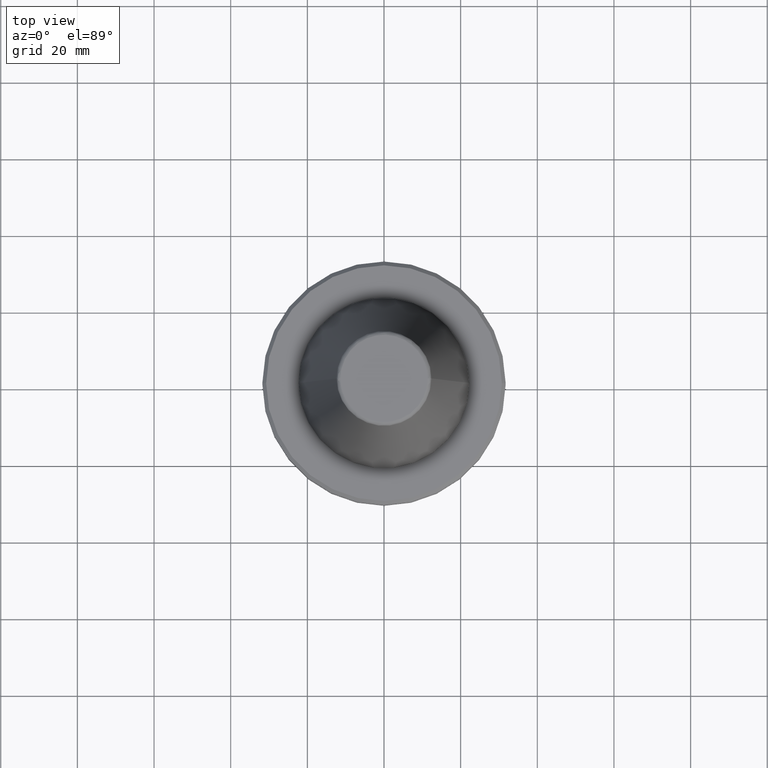
[diagram: clean part render]
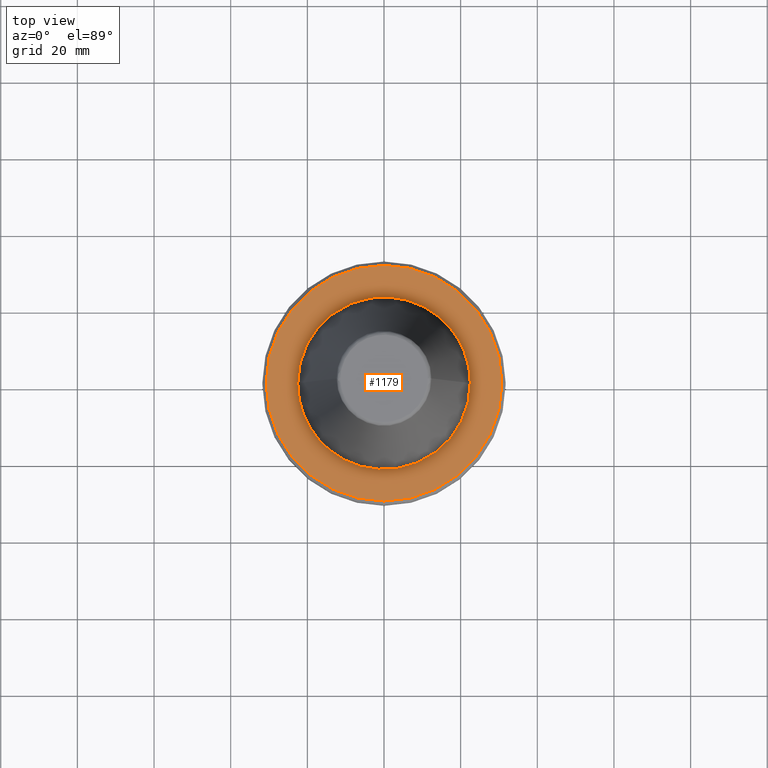
[diagram: same view with one face highlighted and labeled with its STEP entity id]
A machine part, top view. The second image highlights one B-rep face of the part: STEP entity #1179.
In plain terms, the highlighted planar face has unit normal (0, 0, 1).
Its self-contained STEP definition (entity closure, byte-faithful):
#58 = VERTEX_POINT ( 'NONE', #122 ) ;
#110 = ORIENTED_EDGE ( 'NONE', *, *, #385, .T. ) ;
#122 = CARTESIAN_POINT ( 'NONE',  ( -22.50000000641071900, 0.0000000000000000000, -3.200000000159716400 ) ) ;
#129 = CIRCLE ( 'NONE', #664, 30.74999999999994300 ) ;
#158 = EDGE_LOOP ( 'NONE', ( #1421, #447 ) ) ;
#159 = ORIENTED_EDGE ( 'NONE', *, *, #1112, .T. ) ;
#175 = CARTESIAN_POINT ( 'NONE',  ( 22.50000000641071600, 0.0000000000000000000, -3.200000000159716400 ) ) ;
#212 = FACE_OUTER_BOUND ( 'NONE', #1084, .T. ) ;
#288 = CIRCLE ( 'NONE', #986, 30.74999999999994300 ) ;
#385 = EDGE_CURVE ( 'NONE', #833, #1136, #288, .T. ) ;
#430 = DIRECTION ( 'NONE',  ( 1.000000000000000000, 0.0000000000000000000, -0.0000000000000000000 ) ) ;
#431 = DIRECTION ( 'NONE',  ( 0.0000000000000000000, 0.0000000000000000000, 1.000000000000000000 ) ) ;
#432 = PLANE ( 'NONE',  #710 ) ;
#441 = CARTESIAN_POINT ( 'NONE',  ( -29.65760573300000400, -30.95132634999999900, -3.200000000000000200 ) ) ;
#442 = FACE_BOUND ( 'NONE', #158, .T. ) ;
#443 = CARTESIAN_POINT ( 'NONE',  ( -22.50000000641071900, 0.0000000000000000000, -3.200000000159716400 ) ) ;
#445 = CARTESIAN_POINT ( 'NONE',  ( -22.49999999919335300, -1.000383764487009100, -3.199999999999999300 ) ) ;
#447 = ORIENTED_EDGE ( 'NONE', *, *, #1138, .T. ) ;
#448 = CARTESIAN_POINT ( 'NONE',  ( -22.43362831534153700, -1.995958985712068300, -3.199999999999999700 ) ) ;
#449 = CARTESIAN_POINT ( 'NONE',  ( -22.29881083994819600, -3.002206393018389100, -3.200000000000000200 ) ) ;
#452 = CARTESIAN_POINT ( 'NONE',  ( -22.29616357265432900, -3.021808917415557300, -3.199999999999999700 ) ) ;
#456 = CARTESIAN_POINT ( 'NONE',  ( -22.29138125722080600, -3.056878707075477900, -3.199999999999999700 ) ) ;
#457 = CARTESIAN_POINT ( 'NONE',  ( -22.28414685093692800, -3.109469927484942900, -3.200000000000000200 ) ) ;
#459 = CARTESIAN_POINT ( 'NONE',  ( -22.26684003767271100, -3.232088526544054200, -3.200000000000000200 ) ) ;
#461 = CARTESIAN_POINT ( 'NONE',  ( -22.23052028340357800, -3.476948730410478500, -3.200000000000000200 ) ) ;
#463 = CARTESIAN_POINT ( 'NONE',  ( -22.15105626390257500, -3.965161161136002000, -3.199999999999999700 ) ) ;
#464 = CARTESIAN_POINT ( 'NONE',  ( -21.96483018104949600, -4.935554114557929100, -3.199999999999999700 ) ) ;
#465 = CARTESIAN_POINT ( 'NONE',  ( -21.75841117771652100, -5.756979089441006900, -3.199999999999999700 ) ) ;
#466 = CARTESIAN_POINT ( 'NONE',  ( -21.59752482456317700, -6.308484701638374000, -3.199999999999999700 ) ) ;
#467 = CARTESIAN_POINT ( 'NONE',  ( -21.59440449157029500, -6.319157460237291500, -3.200000000000000200 ) ) ;
#470 = CARTESIAN_POINT ( 'NONE',  ( -21.58879054375245600, -6.338307648391933400, -3.199999999999999700 ) ) ;
#472 = CARTESIAN_POINT ( 'NONE',  ( -21.58035118186461100, -6.367025658453508500, -3.200000000000000200 ) ) ;
#473 = CARTESIAN_POINT ( 'NONE',  ( -21.56053025633211100, -6.433983443404518900, -3.200000000000000200 ) ) ;
#474 = CARTESIAN_POINT ( 'NONE',  ( -21.52037208075705300, -6.567695392535787500, -3.200000000000000600 ) ) ;
#475 = CARTESIAN_POINT ( 'NONE',  ( -21.43799043156664300, -6.834304807715398100, -3.200000000000000200 ) ) ;
#476 = CARTESIAN_POINT ( 'NONE',  ( -21.26496594102473000, -7.364265705742873500, -3.200000000000000200 ) ) ;
#478 = CARTESIAN_POINT ( 'NONE',  ( -20.88587219129640700, -8.411155772470827700, -3.199999999999999700 ) ) ;
#479 = CARTESIAN_POINT ( 'NONE',  ( -20.50428651671014200, -9.286150007962785200, -3.200000000000000200 ) ) ;
#480 = CARTESIAN_POINT ( 'NONE',  ( -20.22035085951983600, -9.868509945312187200, -3.199999999999999700 ) ) ;
#481 = CARTESIAN_POINT ( 'NONE',  ( -20.21492483213567900, -9.879620109989730300, -3.199999999999999700 ) ) ;
#482 = CARTESIAN_POINT ( 'NONE',  ( -20.20510947198477300, -9.899676612740309500, -3.199999999999999300 ) ) ;
#483 = CARTESIAN_POINT ( 'NONE',  ( -20.19036533987148700, -9.929748321287673800, -3.199999999999999700 ) ) ;
#484 = CARTESIAN_POINT ( 'NONE',  ( -20.15581472173215300, -9.999824322182089300, -3.200000000000000600 ) ) ;
#487 = CARTESIAN_POINT ( 'NONE',  ( -20.08612291262000600, -10.13961104777305300, -3.200000000000000200 ) ) ;
#488 = CARTESIAN_POINT ( 'NONE',  ( -19.94437700306190600, -10.41772339416360000, -3.200000000000000200 ) ) ;
#489 = B_SPLINE_CURVE_WITH_KNOTS ( 'NONE', 3,
 ( #965, #952, #901, #899, #859, #858, #857, #855, #854, #853, #852, #851, #848, #847, #844, #843, #840, #839, #838, #835, #834, #832, #829, #827, #826, #825, #824, #823, #822, #821, #819, #818, #817, #816, #813, #812, #811, #809, #808, #805, #803, #802, #801, #799, #798, #797, #796, #792, #789, #788, #786, #785, #784, #783, #781, #780, #779, #778, #777, #776, #773, #772, #770, #768, #767, #764, #762, #761, #760, #759, #758, #757, #756, #752, #750, #745, #744, #741, #740, #739, #737, #736, #735, #734, #733, #732, #729, #728, #727, #726, #725, #721, #719, #717, #716, #715, #714, #712, #709, #708, #707, #706, #703, #702, #699, #698, #696, #693, #692, #687, #686, #684, #683, #682, #681, #678, #676, #673, #672, #671, #670, #669, #668, #666, #663, #662, #660, #659, #658, #656, #655, #654, #653, #652, #650 ),
 .UNSPECIFIED., .F., .F.,
 ( 4, 1, 1, 1, 1, 1, 2, 2, 1, 1, 1, 1, 1, 2, 2, 1, 1, 1, 1, 1, 1, 2, 2, 1, 1, 1, 1, 1, 1, 2, 2, 1, 1, 1, 1, 1, 2, 2, 1, 1, 1, 1, 1, 2, 2, 1, 1, 1, 1, 2, 2, 2, 1, 1, 1, 1, 2, 2, 1, 1, 1, 1, 1, 2, 2, 1, 1, 1, 1, 1, 2, 2, 1, 1, 1, 1, 1, 1, 2, 2, 1, 1, 1, 1, 1, 1, 2, 2, 1, 1, 1, 1, 1, 1, 2, 2, 1, 1, 1, 1, 1, 2, 2, 4 ),
 ( 0.0000000000000000000, 0.03124999999999933400, 0.04687499999999900100, 0.05468749999999883400, 0.05859374999999872300, 0.06054687499999865400, 0.06152343749999863300, 0.06249999999999861200, 0.09374999999999830700, 0.1093749999999981800, 0.1171874999999981000, 0.1210937499999980800, 0.1230468749999980800, 0.1240234374999981000, 0.1249999999999981400, 0.1562499999999980300, 0.1718749999999979500, 0.1796874999999978900, 0.1835937499999978600, 0.1855468749999979200, 0.1865234374999979700, 0.1870117187499979700, 0.1874999999999980000, 0.2187500000000010800, 0.2343750000000026400, 0.2421875000000034400, 0.2460937500000038600, 0.2480468750000040000, 0.2490234375000040500, 0.2495117187500041400, 0.2500000000000042200, 0.2812500000000065500, 0.2968750000000076600, 0.3046875000000081600, 0.3085937500000084400, 0.3105468750000086000, 0.3115234375000086000, 0.3125000000000086600, 0.3437500000000088800, 0.3593750000000089400, 0.3671875000000089900, 0.3710937500000089900, 0.3730468750000091000, 0.3740234375000091000, 0.3750000000000091600, 0.4062500000000124300, 0.4218750000000140400, 0.4296875000000148800, 0.4335937500000152700, 0.4355468750000155400, 0.4375000000000157700, 0.5000000000000233100, 0.5312500000000270900, 0.5468750000000289800, 0.5546875000000298600, 0.5585937500000304200, 0.5605468750000306400, 0.5625000000000309800, 0.5937500000000351900, 0.6093750000000373000, 0.6171875000000381900, 0.6210937500000387500, 0.6230468750000389700, 0.6240234375000390800, 0.6250000000000391900, 0.6562500000000409700, 0.6718750000000418600, 0.6796875000000423000, 0.6835937500000426300, 0.6855468750000426300, 0.6865234375000426300, 0.6875000000000426300, 0.7187500000000396300, 0.7343750000000381900, 0.7421875000000374100, 0.7460937500000370800, 0.7480468750000368600, 0.7490234375000367500, 0.7495117187500366400, 0.7500000000000365300, 0.7812500000000340800, 0.7968750000000328600, 0.8046875000000322000, 0.8085937500000319700, 0.8105468750000317500, 0.8115234375000316400, 0.8120117187500315300, 0.8125000000000314200, 0.8437500000000263100, 0.8593750000000237600, 0.8671875000000224300, 0.8710937500000218700, 0.8730468750000214300, 0.8740234375000213200, 0.8745117187500212100, 0.8750000000000210900, 0.9062500000000157700, 0.9218750000000131000, 0.9296875000000117700, 0.9335937500000112100, 0.9355468750000107700, 0.9365234375000106600, 0.9375000000000105500, 1.000000000000000000 ),
 .UNSPECIFIED. ) ;
#491 = CARTESIAN_POINT ( 'NONE',  ( -19.65143601861046800, -10.96810366777915900, -3.199999999999999300 ) ) ;
#492 = CARTESIAN_POINT ( 'NONE',  ( -19.02775738836660200, -12.04548653834809700, -3.200000000000000200 ) ) ;
#495 = CARTESIAN_POINT ( 'NONE',  ( -18.42838142871589100, -12.92888155312919500, -3.200000000000000600 ) ) ;
#496 = CARTESIAN_POINT ( 'NONE',  ( -17.99330653952185000, -13.50892372554150700, -3.200000000000000200 ) ) ;
#497 = CARTESIAN_POINT ( 'NONE',  ( -17.98518233404731600, -13.51973820913018900, -3.199999999999999300 ) ) ;
#498 = CARTESIAN_POINT ( 'NONE',  ( -17.97034258003115400, -13.53945572718636800, -3.200000000000000200 ) ) ;
#500 = CARTESIAN_POINT ( 'NONE',  ( -17.94806086029900200, -13.56901131300871400, -3.200000000000000200 ) ) ;
#501 = CARTESIAN_POINT ( 'NONE',  ( -17.89591555996875600, -13.63782950776072100, -3.200000000000000200 ) ) ;
#502 = B_SPLINE_CURVE_WITH_KNOTS ( 'NONE', 3,
 ( #647, #646, #645, #643, #642, #639, #638, #636, #635, #634, #633, #632, #628, #626, #624, #623, #622, #620, #616, #615, #614, #613, #612, #611, #610, #608, #607, #606, #605, #604, #601, #599, #598, #597, #596, #595, #594, #593, #591, #590, #589, #587, #585, #583, #582, #580, #579, #578, #577, #576, #575, #573, #572, #571, #570, #569, #567, #566, #565, #564, #562, #561, #560, #559, #557, #556, #554, #553, #552, #551, #548, #547, #544, #543, #542, #539, #538, #536, #535, #533, #532, #531, #530, #529, #527, #525, #524, #522, #520, #519, #515, #514, #513, #510, #509, #506, #504, #503, #501, #500, #498, #497, #496, #495, #492, #491, #488, #487, #484, #483, #482, #481, #480, #479, #478, #476, #475, #474, #473, #472, #470, #467, #466, #465, #464, #463, #461, #459, #457, #456, #452, #449, #448, #445, #443 ),
 .UNSPECIFIED., .F., .F.,
 ( 4, 1, 1, 1, 1, 1, 2, 2, 1, 1, 1, 1, 1, 2, 2, 1, 1, 1, 1, 1, 1, 2, 2, 1, 1, 1, 1, 1, 1, 2, 2, 1, 1, 1, 1, 1, 2, 2, 1, 1, 1, 1, 1, 2, 2, 1, 1, 1, 1, 2, 2, 2, 1, 1, 1, 1, 2, 2, 1, 1, 1, 1, 1, 2, 2, 1, 1, 1, 1, 1, 2, 2, 1, 1, 1, 1, 1, 1, 2, 2, 1, 1, 1, 1, 1, 1, 2, 2, 1, 1, 1, 1, 1, 1, 2, 2, 1, 1, 1, 1, 1, 2, 2, 4 ),
 ( 0.0000000000000000000, 0.03125000000000189400, 0.04687500000000283100, 0.05468750000000330300, 0.05859375000000353900, 0.06054687500000365700, 0.06152343750000372600, 0.06250000000000380300, 0.09375000000000618900, 0.1093750000000073700, 0.1171875000000079700, 0.1210937500000082300, 0.1230468750000083500, 0.1240234375000084100, 0.1250000000000084400, 0.1562500000000099400, 0.1718750000000106900, 0.1796875000000110200, 0.1835937500000112400, 0.1855468750000113500, 0.1865234375000113500, 0.1870117187500113200, 0.1875000000000113000, 0.2187500000000086900, 0.2343750000000074100, 0.2421875000000068000, 0.2460937500000064700, 0.2480468750000063300, 0.2490234375000062500, 0.2495117187500062200, 0.2500000000000061600, 0.2812500000000013300, 0.2968749999999989500, 0.3046874999999977200, 0.3085937499999971100, 0.3105468749999968400, 0.3115234374999967200, 0.3124999999999966100, 0.3437499999999932300, 0.3593749999999915600, 0.3671874999999906700, 0.3710937499999902300, 0.3730468749999900600, 0.3740234374999899500, 0.3749999999999898400, 0.4062499999999891200, 0.4218749999999887300, 0.4296874999999885100, 0.4335937499999884000, 0.4355468749999884000, 0.4374999999999883400, 0.4999999999999890100, 0.5312499999999893400, 0.5468749999999895600, 0.5546874999999896700, 0.5585937499999896700, 0.5605468749999896700, 0.5624999999999896700, 0.5937499999999895600, 0.6093749999999895600, 0.6171874999999895600, 0.6210937499999895600, 0.6230468749999895600, 0.6240234374999896700, 0.6249999999999896700, 0.6562499999999921200, 0.6718749999999933400, 0.6796874999999938900, 0.6835937499999941200, 0.6855468749999942300, 0.6865234374999943400, 0.6874999999999943400, 0.7187499999999970000, 0.7343749999999984500, 0.7421874999999991100, 0.7460937499999994400, 0.7480468749999996700, 0.7490234374999998900, 0.7495117187499998900, 0.7499999999999998900, 0.7812500000000014400, 0.7968750000000021100, 0.8046875000000025500, 0.8085937500000026600, 0.8105468750000028900, 0.8115234375000028900, 0.8120117187500028900, 0.8125000000000030000, 0.8437500000000012200, 0.8593750000000002200, 0.8671874999999997800, 0.8710937499999996700, 0.8730468749999995600, 0.8740234374999994400, 0.8745117187499994400, 0.8749999999999995600, 0.9062500000000000000, 0.9218750000000001100, 0.9296875000000003300, 0.9335937500000003300, 0.9355468750000003300, 0.9365234375000003300, 0.9375000000000004400, 1.000000000000000000 ),
 .UNSPECIFIED. ) ;
#503 = CARTESIAN_POINT ( 'NONE',  ( -17.79100647548738600, -13.77488654193084200, -3.199999999999999300 ) ) ;
#504 = CARTESIAN_POINT ( 'NONE',  ( -17.57871437124107000, -14.04668318893558700, -3.200000000000000200 ) ) ;
#506 = CARTESIAN_POINT ( 'NONE',  ( -17.14423442161414000, -14.58100679760300400, -3.199999999999999700 ) ) ;
#509 = CARTESIAN_POINT ( 'NONE',  ( -16.23569155782312400, -15.61257527356954500, -3.199999999999999700 ) ) ;
#510 = CARTESIAN_POINT ( 'NONE',  ( -15.38908402108136500, -16.43321326776667500, -3.200000000000000200 ) ) ;
#513 = CARTESIAN_POINT ( 'NONE',  ( -14.77594043886361100, -16.96826859198785400, -3.200000000000000200 ) ) ;
#514 = CARTESIAN_POINT ( 'NONE',  ( -14.75411326125974100, -16.98725328288543700, -3.199999999999999700 ) ) ;
#515 = CARTESIAN_POINT ( 'NONE',  ( -14.71362546679114500, -17.02233411190898600, -3.200000000000001100 ) ) ;
#519 = CARTESIAN_POINT ( 'NONE',  ( -14.65281326677556400, -17.07483769586658100, -3.199999999999999700 ) ) ;
#520 = CARTESIAN_POINT ( 'NONE',  ( -14.51035457521718400, -17.19652244139036100, -3.200000000000000200 ) ) ;
#522 = CARTESIAN_POINT ( 'NONE',  ( -14.22318295934552000, -17.43659746426205700, -3.199999999999999700 ) ) ;
#524 = CARTESIAN_POINT ( 'NONE',  ( -13.63982279658270400, -17.90356963730202000, -3.200000000000001100 ) ) ;
#525 = CARTESIAN_POINT ( 'NONE',  ( -12.43703474697899300, -18.78480249256811200, -3.200000000000000200 ) ) ;
#527 = CARTESIAN_POINT ( 'NONE',  ( -11.34424317747058500, -19.44978238425825300, -3.199999999999999700 ) ) ;
#529 = CARTESIAN_POINT ( 'NONE',  ( -10.56461004737223800, -19.86553988844152500, -3.200000000000000600 ) ) ;
#530 = CARTESIAN_POINT ( 'NONE',  ( -10.53806154739370100, -19.87963742221694100, -3.199999999999999300 ) ) ;
#531 = CARTESIAN_POINT ( 'NONE',  ( -10.48783044521529800, -19.90618404016772300, -3.199999999999999700 ) ) ;
#532 = CARTESIAN_POINT ( 'NONE',  ( -10.41242643611445700, -19.94585433902130200, -3.199999999999999700 ) ) ;
#533 = CARTESIAN_POINT ( 'NONE',  ( -10.23608225737968700, -20.03737097317146600, -3.200000000000000600 ) ) ;
#535 = CARTESIAN_POINT ( 'NONE',  ( -9.881787936579064200, -20.21621465543893200, -3.199999999999999700 ) ) ;
#536 = CARTESIAN_POINT ( 'NONE',  ( -9.166775441653461700, -20.55714367584253200, -3.200000000000000600 ) ) ;
#538 = CARTESIAN_POINT ( 'NONE',  ( -7.711055038504840200, -21.17196834012443300, -3.200000000000000600 ) ) ;
#539 = CARTESIAN_POINT ( 'NONE',  ( -6.419245413010436600, -21.58404654975125700, -3.200000000000000600 ) ) ;
#542 = CARTESIAN_POINT ( 'NONE',  ( -5.483412546092068900, -21.82167016724023500, -3.200000000000000200 ) ) ;
#543 = CARTESIAN_POINT ( 'NONE',  ( -5.424806877649903200, -21.83631870470430800, -3.199999999999999700 ) ) ;
#544 = CARTESIAN_POINT ( 'NONE',  ( -5.311069838237655100, -21.86426875343051900, -3.200000000000000200 ) ) ;
#547 = CARTESIAN_POINT ( 'NONE',  ( -5.140381900320874400, -21.90551747792966000, -3.200000000000000600 ) ) ;
#548 = CARTESIAN_POINT ( 'NONE',  ( -4.741533393592829000, -21.99703006162982200, -3.200000000000000600 ) ) ;
#551 = CARTESIAN_POINT ( 'NONE',  ( -3.941529773781216100, -22.16111746850549500, -3.200000000000000600 ) ) ;
#552 = CARTESIAN_POINT ( 'NONE',  ( -2.332296108735888200, -22.41354124015820300, -3.200000000000000600 ) ) ;
#553 = CARTESIAN_POINT ( 'NONE',  ( -0.9371362379733818600, -22.50004554369143900, -3.200000000000000200 ) ) ;
#554 = CARTESIAN_POINT ( 'NONE',  ( 1.874272475945013100, -22.49990891167533000, -3.200000000000000600 ) ) ;
#556 = CARTESIAN_POINT ( 'NONE',  ( 3.721873055603823300, -22.26913961059939600, -3.200000000000001100 ) ) ;
#557 = CARTESIAN_POINT ( 'NONE',  ( 5.595229928345694300, -21.79327207916287500, -3.200000000000000200 ) ) ;
#559 = CARTESIAN_POINT ( 'NONE',  ( 5.648564137899969100, -21.77950544200372500, -3.200000000000000200 ) ) ;
#560 = CARTESIAN_POINT ( 'NONE',  ( 5.758433452788200800, -21.75072157107088700, -3.200000000000000200 ) ) ;
#561 = CARTESIAN_POINT ( 'NONE',  ( 5.923004140371413800, -21.70694875912326800, -3.200000000000001100 ) ) ;
#562 = CARTESIAN_POINT ( 'NONE',  ( 6.305369418155062400, -21.60063315907369800, -3.200000000000000600 ) ) ;
#564 = CARTESIAN_POINT ( 'NONE',  ( 7.063568000746856900, -21.37128580362070800, -3.200000000000000600 ) ) ;
#565 = CARTESIAN_POINT ( 'NONE',  ( 8.553837274028477800, -20.84572647129931500, -3.200000000000000600 ) ) ;
#566 = CARTESIAN_POINT ( 'NONE',  ( 9.786420265009322600, -20.28062197831176400, -3.199999999999999700 ) ) ;
#567 = CARTESIAN_POINT ( 'NONE',  ( 10.61329201338569200, -19.83957615112786900, -3.200000000000000200 ) ) ;
#569 = CARTESIAN_POINT ( 'NONE',  ( 10.63549455148016600, -19.82768002981048400, -3.200000000000000200 ) ) ;
#570 = CARTESIAN_POINT ( 'NONE',  ( 10.68267245993856000, -19.80230180263728800, -3.199999999999999700 ) ) ;
#571 = CARTESIAN_POINT ( 'NONE',  ( 10.75335797334229900, -19.76411738108785700, -3.200000000000000600 ) ) ;
#572 = CARTESIAN_POINT ( 'NONE',  ( 10.91772139296404000, -19.67420083194505100, -3.200000000000000600 ) ) ;
#573 = CARTESIAN_POINT ( 'NONE',  ( 11.24417045225963500, -19.49108947154958900, -3.200000000000001100 ) ) ;
#575 = CARTESIAN_POINT ( 'NONE',  ( 11.88795745105931400, -19.11175370231922000, -3.199999999999999700 ) ) ;
#576 = CARTESIAN_POINT ( 'NONE',  ( 13.13908696949250700, -18.30062997010083900, -3.200000000000000600 ) ) ;
#577 = CARTESIAN_POINT ( 'NONE',  ( 14.14900744957902400, -17.51546301032905000, -3.199999999999999700 ) ) ;
#578 = CARTESIAN_POINT ( 'NONE',  ( 14.81469283172226200, -16.93444828753346700, -3.200000000000000200 ) ) ;
#579 = CARTESIAN_POINT ( 'NONE',  ( 14.83168076082973700, -16.91956786132646000, -3.200000000000000200 ) ) ;
#580 = CARTESIAN_POINT ( 'NONE',  ( 14.86875192379283900, -16.88699891330151100, -3.199999999999999700 ) ) ;
#582 = CARTESIAN_POINT ( 'NONE',  ( 14.92426961778573400, -16.83806347619754400, -3.199999999999999300 ) ) ;
#583 = CARTESIAN_POINT ( 'NONE',  ( 15.05318755060699100, -16.72330668415575500, -3.200000000000000600 ) ) ;
#585 = CARTESIAN_POINT ( 'NONE',  ( 15.30853000360069100, -16.49149667820873700, -3.200000000000000600 ) ) ;
#587 = CARTESIAN_POINT ( 'NONE',  ( 15.80924125899282200, -16.01869097886088200, -3.199999999999999700 ) ) ;
#589 = CARTESIAN_POINT ( 'NONE',  ( 16.77076916739606500, -15.03633683035000100, -3.200000000000000200 ) ) ;
#590 = CARTESIAN_POINT ( 'NONE',  ( 17.52654519908851700, -14.13133141765747600, -3.200000000000000200 ) ) ;
#591 = CARTESIAN_POINT ( 'NONE',  ( 18.00739773060926700, -13.49013544640896000, -3.200000000000000200 ) ) ;
#593 = CARTESIAN_POINT ( 'NONE',  ( 18.01339103380482200, -13.48212992665118500, -3.200000000000001100 ) ) ;
#594 = CARTESIAN_POINT ( 'NONE',  ( 18.02676084524517100, -13.46424702288965000, -3.200000000000000600 ) ) ;
#595 = CARTESIAN_POINT ( 'NONE',  ( 18.04679433939628600, -13.43740983664738500, -3.199999999999999300 ) ) ;
#596 = CARTESIAN_POINT ( 'NONE',  ( 18.09339059801647700, -13.37469992121581600, -3.199999999999999700 ) ) ;
#597 = CARTESIAN_POINT ( 'NONE',  ( 18.18598887099380300, -13.24892083355418600, -3.199999999999999300 ) ) ;
#598 = CARTESIAN_POINT ( 'NONE',  ( 18.36880843989641600, -12.99592563103692000, -3.200000000000000600 ) ) ;
#599 = CARTESIAN_POINT ( 'NONE',  ( 18.72493966949323900, -12.48418711722642100, -3.200000000000000200 ) ) ;
#601 = CARTESIAN_POINT ( 'NONE',  ( 19.39917049585347500, -11.43771765450146000, -3.199999999999999700 ) ) ;
#604 = CARTESIAN_POINT ( 'NONE',  ( 19.91188554787636300, -10.50132822627332600, -3.199999999999999700 ) ) ;
#605 = CARTESIAN_POINT ( 'NONE',  ( 20.22960712465765800, -9.849522785651528200, -3.200000000000000600 ) ) ;
#606 = CARTESIAN_POINT ( 'NONE',  ( 20.23345712605081600, -9.841609494354012000, -3.200000000000000600 ) ) ;
#607 = CARTESIAN_POINT ( 'NONE',  ( 20.24217662106328000, -9.823661388711215600, -3.200000000000001100 ) ) ;
#608 = CARTESIAN_POINT ( 'NONE',  ( 20.25523733294311800, -9.796732191911315700, -3.200000000000000200 ) ) ;
#610 = CARTESIAN_POINT ( 'NONE',  ( 20.28558261285737900, -9.733848131028242500, -3.199999999999999700 ) ) ;
#611 = CARTESIAN_POINT ( 'NONE',  ( 20.34575431479776600, -9.607882935862234000, -3.200000000000000200 ) ) ;
#612 = CARTESIAN_POINT ( 'NONE',  ( 20.46402228712596400, -9.355164251930668600, -3.199999999999999700 ) ) ;
#613 = CARTESIAN_POINT ( 'NONE',  ( 20.69225650557223200, -8.846573709669421200, -3.199999999999999300 ) ) ;
#614 = CARTESIAN_POINT ( 'NONE',  ( 21.11551803762403900, -7.816779927554459400, -3.199999999999999700 ) ) ;
#615 = CARTESIAN_POINT ( 'NONE',  ( 21.42138751394152900, -6.912477775583131000, -3.200000000000000200 ) ) ;
#616 = CARTESIAN_POINT ( 'NONE',  ( 21.60558163939211000, -6.280860069423048300, -3.200000000000001100 ) ) ;
#620 = CARTESIAN_POINT ( 'NONE',  ( 21.60988920361008100, -6.266015010252220700, -3.200000000000000600 ) ) ;
#622 = CARTESIAN_POINT ( 'NONE',  ( 21.61971726658942900, -6.232017541426134100, -3.199999999999999700 ) ) ;
#623 = CARTESIAN_POINT ( 'NONE',  ( 21.63439821965464900, -6.181008859021461400, -3.199999999999999700 ) ) ;
#624 = CARTESIAN_POINT ( 'NONE',  ( 21.66822578698019100, -6.061901245918286400, -3.199999999999999700 ) ) ;
#626 = CARTESIAN_POINT ( 'NONE',  ( 21.73416896232480500, -5.823336603076342900, -3.199999999999999300 ) ) ;
#628 = CARTESIAN_POINT ( 'NONE',  ( 21.85920747578810000, -5.344809650849982500, -3.199999999999999700 ) ) ;
#632 = CARTESIAN_POINT ( 'NONE',  ( 22.08189315381100600, -4.382165080227365700, -3.200000000000000600 ) ) ;
#633 = CARTESIAN_POINT ( 'NONE',  ( 22.22580999399576000, -3.547457163402453900, -3.200000000000000600 ) ) ;
#634 = CARTESIAN_POINT ( 'NONE',  ( 22.30323104748415700, -2.969202804308988000, -3.199999999999999300 ) ) ;
#635 = CARTESIAN_POINT ( 'NONE',  ( 22.30501698071703100, -2.955741716256742500, -3.200000000000000600 ) ) ;
#636 = CARTESIAN_POINT ( 'NONE',  ( 22.30910039441743500, -2.924754750454301400, -3.200000000000000600 ) ) ;
#638 = CARTESIAN_POINT ( 'NONE',  ( 22.31517690290560600, -2.878271283366910200, -3.199999999999998800 ) ) ;
#639 = CARTESIAN_POINT ( 'NONE',  ( 22.32901513827440400, -2.769788731476885400, -3.200000000000000200 ) ) ;
#642 = CARTESIAN_POINT ( 'NONE',  ( 22.35533047126426700, -2.552739112952388600, -3.200000000000000200 ) ) ;
#643 = CARTESIAN_POINT ( 'NONE',  ( 22.40251658625295100, -2.118301816925619400, -3.200000000000000600 ) ) ;
#645 = CARTESIAN_POINT ( 'NONE',  ( 22.47511061226610000, -1.248074988961003000, -3.200000000000000200 ) ) ;
#646 = CARTESIAN_POINT ( 'NONE',  ( 22.49999999919589300, -0.4998481605723255100, -3.199999999999999700 ) ) ;
#647 = CARTESIAN_POINT ( 'NONE',  ( 22.50000000641071600, 0.0000000000000000000, -3.200000000159716400 ) ) ;
#650 = CARTESIAN_POINT ( 'NONE',  ( 22.50000000641071600, 0.0000000000000000000, -3.200000000159716400 ) ) ;
#652 = CARTESIAN_POINT ( 'NONE',  ( 22.49999999919336300, 1.000383764511540800, -3.200000000000001500 ) ) ;
#653 = CARTESIAN_POINT ( 'NONE',  ( 22.43362831534156500, 1.995958985736492800, -3.200000000000000600 ) ) ;
#654 = CARTESIAN_POINT ( 'NONE',  ( 22.29881083994823100, 3.002206393017687000, -3.199999999999999300 ) ) ;
#655 = CARTESIAN_POINT ( 'NONE',  ( 22.29616357265416200, 3.021808917415953500, -3.200000000000001100 ) ) ;
#656 = CARTESIAN_POINT ( 'NONE',  ( 22.29138125722043600, 3.056878707076565900, -3.199999999999999700 ) ) ;
#658 = CARTESIAN_POINT ( 'NONE',  ( 22.28414685093625600, 3.109469927487047900, -3.200000000000000200 ) ) ;
#659 = CARTESIAN_POINT ( 'NONE',  ( 22.26684003767134700, 3.232088526548413800, -3.200000000000000200 ) ) ;
#660 = CARTESIAN_POINT ( 'NONE',  ( 22.23052028340103100, 3.476948730418878400, -3.199999999999999300 ) ) ;
#662 = CARTESIAN_POINT ( 'NONE',  ( 22.15105626389817300, 3.965161161150635200, -3.200000000000000600 ) ) ;
#663 = CARTESIAN_POINT ( 'NONE',  ( 21.96483018104364500, 4.935554114577473500, -3.200000000000000600 ) ) ;
#664 = AXIS2_PLACEMENT_3D ( 'NONE', #1149, #1192, #1173 ) ;
#666 = CARTESIAN_POINT ( 'NONE',  ( 21.75841117771326000, 5.756979089451897700, -3.200000000000000600 ) ) ;
#668 = CARTESIAN_POINT ( 'NONE',  ( 21.59752482456340100, 6.308484701637604900, -3.200000000000000600 ) ) ;
#669 = CARTESIAN_POINT ( 'NONE',  ( 21.59440449156988300, 6.319157460238742800, -3.200000000000001500 ) ) ;
#670 = CARTESIAN_POINT ( 'NONE',  ( 21.58879054375144000, 6.338307648395401700, -3.200000000000000200 ) ) ;
#671 = CARTESIAN_POINT ( 'NONE',  ( 21.58035118186272100, 6.367025658459989600, -3.199999999999999700 ) ) ;
#672 = CARTESIAN_POINT ( 'NONE',  ( 21.56053025632824200, 6.433983443417822000, -3.199999999999999700 ) ) ;
#673 = CARTESIAN_POINT ( 'NONE',  ( 21.52037208074938900, 6.567695392562114000, -3.200000000000000200 ) ) ;
#676 = CARTESIAN_POINT ( 'NONE',  ( 21.43799043155222600, 6.834304807765020600, -3.200000000000000600 ) ) ;
#678 = CARTESIAN_POINT ( 'NONE',  ( 21.26496594099990000, 7.364265705828367800, -3.200000000000000600 ) ) ;
#681 = CARTESIAN_POINT ( 'NONE',  ( 20.88587219126330700, 8.411155772584933700, -3.199999999999999700 ) ) ;
#682 = CARTESIAN_POINT ( 'NONE',  ( 20.50428651669146200, 9.286150008027540500, -3.200000000000000200 ) ) ;
#683 = CARTESIAN_POINT ( 'NONE',  ( 20.22035085952062900, 9.868509945310171000, -3.200000000000000200 ) ) ;
#684 = CARTESIAN_POINT ( 'NONE',  ( 20.21492483213495800, 9.879620109990316500, -3.200000000000000200 ) ) ;
#686 = CARTESIAN_POINT ( 'NONE',  ( 20.20510947198284100, 9.899676612742455400, -3.200000000000000600 ) ) ;
#687 = CARTESIAN_POINT ( 'NONE',  ( 20.19036533986776000, 9.929748321292141400, -3.200000000000000200 ) ) ;
#692 = CARTESIAN_POINT ( 'NONE',  ( 20.15581472172434400, 9.999824322191836100, -3.200000000000000600 ) ) ;
#693 = CARTESIAN_POINT ( 'NONE',  ( 20.08612291260444500, 10.13961104779284700, -3.200000000000000600 ) ) ;
#696 = CARTESIAN_POINT ( 'NONE',  ( 19.94437700303245000, 10.41772339420139400, -3.199999999999999700 ) ) ;
#698 = CARTESIAN_POINT ( 'NONE',  ( 19.65143601855962500, 10.96810366784462700, -3.199999999999999700 ) ) ;
#699 = CARTESIAN_POINT ( 'NONE',  ( 19.02775738829874200, 12.04548653843567900, -3.200000000000000200 ) ) ;
#702 = CARTESIAN_POINT ( 'NONE',  ( 18.42838142867755400, 12.92888155317866800, -3.200000000000000600 ) ) ;
#703 = CARTESIAN_POINT ( 'NONE',  ( 17.99330653952341700, 13.50892372553944100, -3.200000000000001100 ) ) ;
#706 = CARTESIAN_POINT ( 'NONE',  ( 17.98518233404830400, 13.51973820912894000, -3.200000000000001500 ) ) ;
#707 = CARTESIAN_POINT ( 'NONE',  ( 17.97034258003216000, 13.53945572718512700, -3.199999999999999700 ) ) ;
#708 = CARTESIAN_POINT ( 'NONE',  ( 17.94806086030005000, 13.56901131300747700, -3.199999999999999700 ) ) ;
#709 = CARTESIAN_POINT ( 'NONE',  ( 17.89591555996993200, 13.63782950775953200, -3.200000000000000200 ) ) ;
#710 = AXIS2_PLACEMENT_3D ( 'NONE', #441, #431, #430 ) ;
#712 = CARTESIAN_POINT ( 'NONE',  ( 17.79100647548878200, 13.77488654192972300, -3.199999999999999700 ) ) ;
#714 = CARTESIAN_POINT ( 'NONE',  ( 17.57871437124284600, 14.04668318893461000, -3.200000000000000200 ) ) ;
#715 = CARTESIAN_POINT ( 'NONE',  ( 17.14423442161652400, 14.58100679760224800, -3.200000000000000200 ) ) ;
#716 = CARTESIAN_POINT ( 'NONE',  ( 16.23569155782601600, 15.61257527356898400, -3.199999999999999300 ) ) ;
#717 = CARTESIAN_POINT ( 'NONE',  ( 15.38908402108355500, 16.43321326776591800, -3.199999999999999700 ) ) ;
#719 = CARTESIAN_POINT ( 'NONE',  ( 14.77594043886476900, 16.96826859198679200, -3.200000000000000200 ) ) ;
#721 = CARTESIAN_POINT ( 'NONE',  ( 14.75411326125963300, 16.98725328288543000, -3.199999999999999700 ) ) ;
#725 = CARTESIAN_POINT ( 'NONE',  ( 14.71362546678977300, 17.02233411190999800, -3.200000000000000200 ) ) ;
#726 = CARTESIAN_POINT ( 'NONE',  ( 14.65281326677232900, 17.07483769586912800, -3.200000000000000200 ) ) ;
#727 = CARTESIAN_POINT ( 'NONE',  ( 14.51035457520979200, 17.19652244139626500, -3.200000000000000200 ) ) ;
#728 = CARTESIAN_POINT ( 'NONE',  ( 14.22318295933072300, 17.43659746427400500, -3.200000000000000200 ) ) ;
#729 = CARTESIAN_POINT ( 'NONE',  ( 13.63982279655646000, 17.90356963732325500, -3.199999999999999700 ) ) ;
#732 = CARTESIAN_POINT ( 'NONE',  ( 12.43703474694364500, 18.78480249259687400, -3.200000000000001100 ) ) ;
#733 = CARTESIAN_POINT ( 'NONE',  ( 11.34424317745096800, 19.44978238427440000, -3.199999999999999700 ) ) ;
#734 = CARTESIAN_POINT ( 'NONE',  ( 10.56461004737423600, 19.86553988844029900, -3.200000000000001100 ) ) ;
#735 = CARTESIAN_POINT ( 'NONE',  ( 10.53806154739282500, 19.87963742221703700, -3.200000000000001100 ) ) ;
#736 = CARTESIAN_POINT ( 'NONE',  ( 10.48783044521225000, 19.90618404016861500, -3.200000000000001100 ) ) ;
#737 = CARTESIAN_POINT ( 'NONE',  ( 10.41242643610819000, 19.94585433902337400, -3.199999999999999700 ) ) ;
#739 = CARTESIAN_POINT ( 'NONE',  ( 10.23608225736632200, 20.03737097317612000, -3.200000000000000200 ) ) ;
#740 = CARTESIAN_POINT ( 'NONE',  ( 9.881787936552964200, 20.21621465544824400, -3.200000000000000600 ) ) ;
#741 = CARTESIAN_POINT ( 'NONE',  ( 9.166775441607741800, 20.55714367585903800, -3.200000000000000600 ) ) ;
#744 = CARTESIAN_POINT ( 'NONE',  ( 7.711055038443463500, 21.17196834014672600, -3.200000000000000200 ) ) ;
#745 = CARTESIAN_POINT ( 'NONE',  ( 6.419245412975950400, 21.58404654976387200, -3.200000000000000600 ) ) ;
#750 = CARTESIAN_POINT ( 'NONE',  ( 5.483412546095688200, 21.82167016723907300, -3.200000000000000200 ) ) ;
#752 = CARTESIAN_POINT ( 'NONE',  ( 5.424806877650739000, 21.83631870470361500, -3.200000000000000200 ) ) ;
#756 = CARTESIAN_POINT ( 'NONE',  ( 5.311069838237976600, 21.86426875342948900, -3.200000000000000600 ) ) ;
#757 = CARTESIAN_POINT ( 'NONE',  ( 5.140381900320433000, 21.90551747792813900, -3.200000000000000200 ) ) ;
#758 = CARTESIAN_POINT ( 'NONE',  ( 4.741533393590835000, 21.99703006162729200, -3.199999999999999700 ) ) ;
#759 = CARTESIAN_POINT ( 'NONE',  ( 3.941529773776805800, 22.16111746850142700, -3.199999999999999700 ) ) ;
#760 = CARTESIAN_POINT ( 'NONE',  ( 2.332296108729527500, 22.41354124015294100, -3.200000000000000600 ) ) ;
#761 = CARTESIAN_POINT ( 'NONE',  ( 0.9371362379703432900, 22.50004554368846100, -3.200000000000000200 ) ) ;
#762 = CARTESIAN_POINT ( 'NONE',  ( -1.874272475934800600, 22.49990891168127000, -3.199999999999999300 ) ) ;
#764 = CARTESIAN_POINT ( 'NONE',  ( -3.721873055541329300, 22.26913961060544600, -3.200000000000000200 ) ) ;
#767 = CARTESIAN_POINT ( 'NONE',  ( -5.595229928346342700, 21.79327207916301700, -3.200000000000000200 ) ) ;
#768 = CARTESIAN_POINT ( 'NONE',  ( -5.648564137905282200, 21.77950544200296800, -3.200000000000001100 ) ) ;
#770 = CARTESIAN_POINT ( 'NONE',  ( -5.758433452799786200, 21.75072157106908900, -3.199999999999999700 ) ) ;
#772 = CARTESIAN_POINT ( 'NONE',  ( -5.923004140392094100, 21.70694875911997800, -3.200000000000000600 ) ) ;
#773 = CARTESIAN_POINT ( 'NONE',  ( -6.305369418194758600, 21.60063315906726100, -3.200000000000000600 ) ) ;
#776 = CARTESIAN_POINT ( 'NONE',  ( -7.063568000815835500, 21.37128580360944200, -3.200000000000000200 ) ) ;
#777 = CARTESIAN_POINT ( 'NONE',  ( -8.553837274120930100, 20.84572647128424400, -3.200000000000000600 ) ) ;
#778 = CARTESIAN_POINT ( 'NONE',  ( -9.786420265061751800, 20.28062197830339700, -3.200000000000000200 ) ) ;
#779 = CARTESIAN_POINT ( 'NONE',  ( -10.61329201338304500, 19.83957615112867100, -3.199999999999999700 ) ) ;
#780 = CARTESIAN_POINT ( 'NONE',  ( -10.63549455148207700, 19.82768002980832700, -3.199999999999999700 ) ) ;
#781 = CARTESIAN_POINT ( 'NONE',  ( -10.68267245994329400, 19.80230180263251700, -3.200000000000001100 ) ) ;
#783 = CARTESIAN_POINT ( 'NONE',  ( -10.75335797335118700, 19.76411738107920600, -3.200000000000000600 ) ) ;
#784 = CARTESIAN_POINT ( 'NONE',  ( -10.91772139298215700, 19.67420083192781300, -3.200000000000000200 ) ) ;
#785 = CARTESIAN_POINT ( 'NONE',  ( -11.24417045229431400, 19.49108947151694300, -3.200000000000000600 ) ) ;
#786 = CARTESIAN_POINT ( 'NONE',  ( -11.88795745111947300, 19.11175370226291300, -3.200000000000000600 ) ) ;
#788 = CARTESIAN_POINT ( 'NONE',  ( -13.13908696957314600, 18.30062997002554000, -3.200000000000000600 ) ) ;
#789 = CARTESIAN_POINT ( 'NONE',  ( -14.14900744962491100, 17.51546301028622200, -3.200000000000000600 ) ) ;
#792 = CARTESIAN_POINT ( 'NONE',  ( -14.81469283172027200, 16.93444828753528200, -3.199999999999999300 ) ) ;
#796 = CARTESIAN_POINT ( 'NONE',  ( -14.83168076082851300, 16.91956786132767800, -3.200000000000000600 ) ) ;
#797 = CARTESIAN_POINT ( 'NONE',  ( -14.86875192379094700, 16.88699891330347600, -3.200000000000000200 ) ) ;
#798 = CARTESIAN_POINT ( 'NONE',  ( -14.92426961778287600, 16.83806347620059900, -3.200000000000000600 ) ) ;
#799 = CARTESIAN_POINT ( 'NONE',  ( -15.05318755060193300, 16.72330668416123300, -3.199999999999999700 ) ) ;
#801 = CARTESIAN_POINT ( 'NONE',  ( -15.30853000359170900, 16.49149667821854200, -3.200000000000000200 ) ) ;
#802 = CARTESIAN_POINT ( 'NONE',  ( -15.80924125897780600, 16.01869097887735500, -3.200000000000000200 ) ) ;
#803 = CARTESIAN_POINT ( 'NONE',  ( -16.77076916737629700, 15.03633683037177700, -3.200000000000001500 ) ) ;
#805 = CARTESIAN_POINT ( 'NONE',  ( -17.52654519907714500, 14.13133141767003700, -3.200000000000000200 ) ) ;
#808 = CARTESIAN_POINT ( 'NONE',  ( -18.00739773060919900, 13.49013544640906700, -3.199999999999999700 ) ) ;
#809 = CARTESIAN_POINT ( 'NONE',  ( -18.01339103380448800, 13.48212992665169100, -3.199999999999999300 ) ) ;
#811 = CARTESIAN_POINT ( 'NONE',  ( -18.02676084524473400, 13.46424702289035100, -3.200000000000000600 ) ) ;
#812 = CARTESIAN_POINT ( 'NONE',  ( -18.04679433939569200, 13.43740983664840400, -3.199999999999999700 ) ) ;
#813 = CARTESIAN_POINT ( 'NONE',  ( -18.09339059801553200, 13.37469992121753000, -3.199999999999999700 ) ) ;
#816 = CARTESIAN_POINT ( 'NONE',  ( -18.18598887099223700, 13.24892083355722900, -3.200000000000001100 ) ) ;
#817 = CARTESIAN_POINT ( 'NONE',  ( -18.36880843989366200, 12.99592563104235200, -3.199999999999999700 ) ) ;
#818 = CARTESIAN_POINT ( 'NONE',  ( -18.72493966948870900, 12.48418711723552500, -3.199999999999999700 ) ) ;
#819 = CARTESIAN_POINT ( 'NONE',  ( -19.39917049584752500, 11.43771765451353400, -3.200000000000000600 ) ) ;
#821 = CARTESIAN_POINT ( 'NONE',  ( -19.91188554787286700, 10.50132822628042600, -3.200000000000000600 ) ) ;
#822 = CARTESIAN_POINT ( 'NONE',  ( -20.22960712465747700, 9.849522785651863900, -3.199999999999998800 ) ) ;
#823 = CARTESIAN_POINT ( 'NONE',  ( -20.23345712605037500, 9.841609494354884200, -3.200000000000000600 ) ) ;
#824 = CARTESIAN_POINT ( 'NONE',  ( -20.24217662106263700, 9.823661388712519500, -3.200000000000000200 ) ) ;
#825 = CARTESIAN_POINT ( 'NONE',  ( -20.25523733294215500, 9.796732191913271500, -3.200000000000000200 ) ) ;
#826 = CARTESIAN_POINT ( 'NONE',  ( -20.28558261285570900, 9.733848131031647800, -3.200000000000000200 ) ) ;
#827 = CARTESIAN_POINT ( 'NONE',  ( -20.34575431479473900, 9.607882935868408600, -3.200000000000000200 ) ) ;
#829 = CARTESIAN_POINT ( 'NONE',  ( -20.46402228712055700, 9.355164251941809900, -3.199999999999999700 ) ) ;
#832 = CARTESIAN_POINT ( 'NONE',  ( -20.69225650556310100, 8.846573709688188500, -3.199999999999999300 ) ) ;
#833 = VERTEX_POINT ( 'NONE', #1064 ) ;
#834 = CARTESIAN_POINT ( 'NONE',  ( -21.11551803761197400, 7.816779927579309700, -3.199999999999999700 ) ) ;
#835 = CARTESIAN_POINT ( 'NONE',  ( -21.42138751393459700, 6.912477775597456500, -3.199999999999999700 ) ) ;
#838 = CARTESIAN_POINT ( 'NONE',  ( -21.60558163939222000, 6.280860069422921300, -3.200000000000000600 ) ) ;
#839 = CARTESIAN_POINT ( 'NONE',  ( -21.60988920361111500, 6.266015010249178700, -3.200000000000000200 ) ) ;
#840 = CARTESIAN_POINT ( 'NONE',  ( -21.61971726659155000, 6.232017541419822700, -3.199999999999999700 ) ) ;
#843 = CARTESIAN_POINT ( 'NONE',  ( -21.63439821965839700, 6.181008859010322700, -3.199999999999999700 ) ) ;
#844 = CARTESIAN_POINT ( 'NONE',  ( -21.66822578698755200, 6.061901245896431900, -3.199999999999999700 ) ) ;
#847 = CARTESIAN_POINT ( 'NONE',  ( -21.73416896233862900, 5.823336603035273600, -3.200000000000000200 ) ) ;
#848 = CARTESIAN_POINT ( 'NONE',  ( -21.85920747581187800, 5.344809650779343900, -3.199999999999999300 ) ) ;
#851 = CARTESIAN_POINT ( 'NONE',  ( -22.08189315384277100, 4.382165080133041200, -3.200000000000000600 ) ) ;
#852 = CARTESIAN_POINT ( 'NONE',  ( -22.22580999401390400, 3.547457163348594300, -3.200000000000000600 ) ) ;
#853 = CARTESIAN_POINT ( 'NONE',  ( -22.30323104748357800, 2.969202804310803900, -3.199999999999999700 ) ) ;
#854 = CARTESIAN_POINT ( 'NONE',  ( -22.30501698071702400, 2.955741716252400200, -3.200000000000001100 ) ) ;
#855 = CARTESIAN_POINT ( 'NONE',  ( -22.30910039441742000, 2.924754750445592400, -3.200000000000000200 ) ) ;
#857 = CARTESIAN_POINT ( 'NONE',  ( -22.31517690290559100, 2.878271283351753400, -3.199999999999999700 ) ) ;
#858 = CARTESIAN_POINT ( 'NONE',  ( -22.32901513827440400, 2.769788731447439200, -3.200000000000000200 ) ) ;
#859 = CARTESIAN_POINT ( 'NONE',  ( -22.35533047126427400, 2.552739112897291800, -3.199999999999999300 ) ) ;
#899 = CARTESIAN_POINT ( 'NONE',  ( -22.40251658625293600, 2.118301816831087900, -3.199999999999999700 ) ) ;
#901 = CARTESIAN_POINT ( 'NONE',  ( -22.47511061226608200, 1.248074988834889000, -3.200000000000000200 ) ) ;
#902 = CARTESIAN_POINT ( 'NONE',  ( 30.74999999999994300, 3.827021247335470200E-015, -3.200000000000036100 ) ) ;
#952 = CARTESIAN_POINT ( 'NONE',  ( -22.49999999919588200, 0.4998481605002501600, -3.200000000000000200 ) ) ;
#965 = CARTESIAN_POINT ( 'NONE',  ( -22.50000000641071900, 0.0000000000000000000, -3.200000000159716400 ) ) ;
#986 = AXIS2_PLACEMENT_3D ( 'NONE', #1392, #1395, #1402 ) ;
#1064 = CARTESIAN_POINT ( 'NONE',  ( -30.74999999999994300, 0.0000000000000000000, -3.200000000000036100 ) ) ;
#1084 = EDGE_LOOP ( 'NONE', ( #110, #159 ) ) ;
#1112 = EDGE_CURVE ( 'NONE', #1136, #833, #129, .T. ) ;
#1118 = EDGE_CURVE ( 'NONE', #58, #1501, #489, .T. ) ;
#1136 = VERTEX_POINT ( 'NONE', #902 ) ;
#1138 = EDGE_CURVE ( 'NONE', #1501, #58, #502, .T. ) ;
#1149 = CARTESIAN_POINT ( 'NONE',  ( 0.0000000000000000000, 0.0000000000000000000, -3.200000000000036100 ) ) ;
#1173 = DIRECTION ( 'NONE',  ( 1.000000000000000000, 0.0000000000000000000, 0.0000000000000000000 ) ) ;
#1179 = ADVANCED_FACE ( 'NONE', ( #442, #212 ), #432, .T. ) ;
#1192 = DIRECTION ( 'NONE',  ( -0.0000000000000000000, -0.0000000000000000000, 1.000000000000000000 ) ) ;
#1392 = CARTESIAN_POINT ( 'NONE',  ( 0.0000000000000000000, 0.0000000000000000000, -3.200000000000036100 ) ) ;
#1395 = DIRECTION ( 'NONE',  ( -0.0000000000000000000, -0.0000000000000000000, 1.000000000000000000 ) ) ;
#1402 = DIRECTION ( 'NONE',  ( 1.000000000000000000, 0.0000000000000000000, 0.0000000000000000000 ) ) ;
#1421 = ORIENTED_EDGE ( 'NONE', *, *, #1118, .T. ) ;
#1501 = VERTEX_POINT ( 'NONE', #175 ) ;